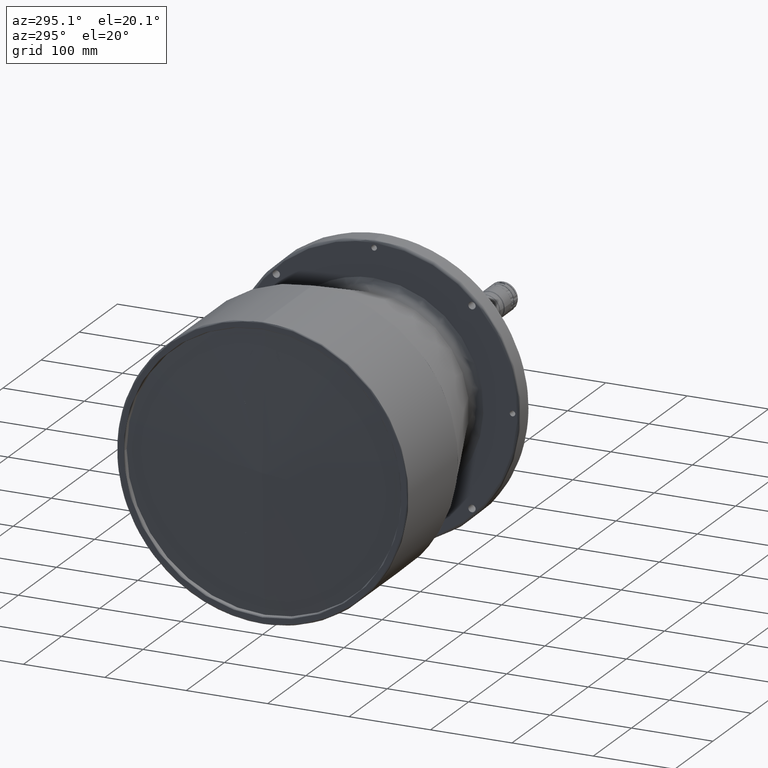
[diagram: clean part render]
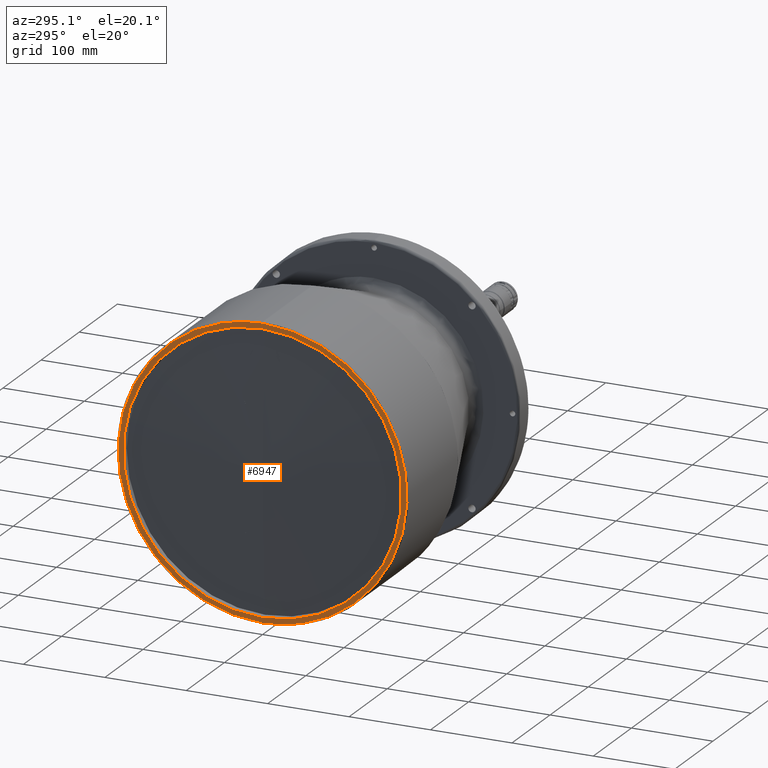
[diagram: same view with one face highlighted and labeled with its STEP entity id]
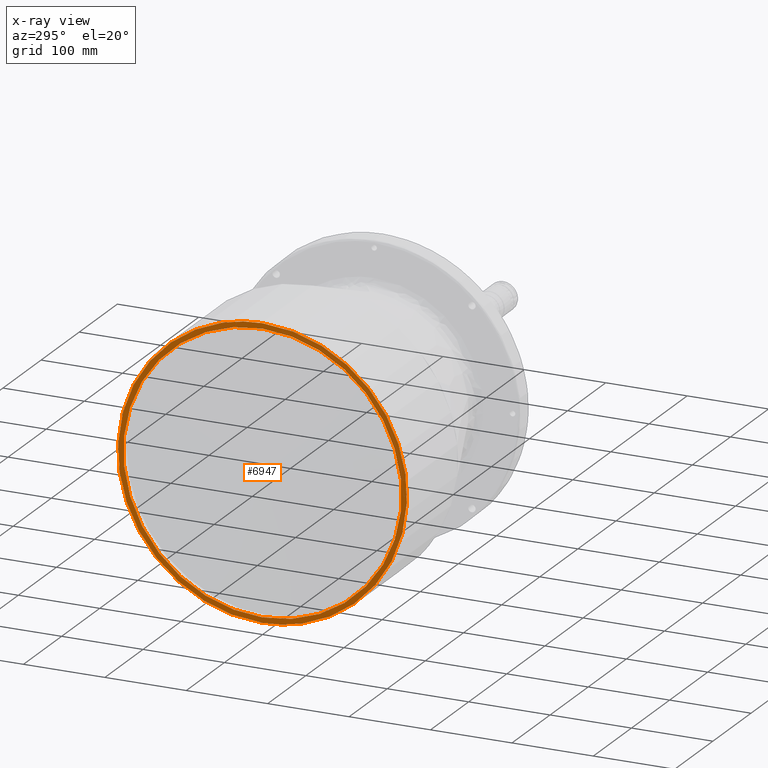
[diagram: x-ray of the same camera — body ghosted, the highlighted face saturated]
A machine part, auxiliary view. The second image highlights one B-rep face of the part: STEP entity #6947.
The next image is the same camera in x-ray: the body ghosted, the highlighted face saturated — about 0% of this face is hidden behind the body in this view.
In plain terms, the highlighted planar face has unit normal (1, -0, 0).
Its self-contained STEP definition (entity closure, byte-faithful):
#25 = VERTEX_POINT ( 'NONE', #4126 ) ;
#275 = ORIENTED_EDGE ( 'NONE', *, *, #3198, .F. ) ;
#1053 = CARTESIAN_POINT ( 'NONE',  ( -3.668491710333236300E-011, 0.0000000000000000000, 177.4999999651986700 ) ) ;
#1296 = VERTEX_POINT ( 'NONE', #6651 ) ;
#1598 = VERTEX_POINT ( 'NONE', #4793 ) ;
#1746 = CARTESIAN_POINT ( 'NONE',  ( -3.668491752681357800E-011, 0.0000000000000000000, -177.4999999651986700 ) ) ;
#2178 =( BOUNDED_CURVE ( )  B_SPLINE_CURVE ( 3, ( #1053, #8988, #3321, #1746 ),
 .UNSPECIFIED., .F., .T. ) 
 B_SPLINE_CURVE_WITH_KNOTS ( ( 4, 4 ),
 ( 0.0000000000000000000, 1.000000000000000000 ),
 .UNSPECIFIED. ) 
 CURVE ( )  GEOMETRIC_REPRESENTATION_ITEM ( )  RATIONAL_B_SPLINE_CURVE ( ( 0.9565783021659444200, 0.3188594340553144200, 0.3188594340553144200, 0.9565783021659444200 ) ) 
 REPRESENTATION_ITEM ( '' )  );
#2301 = DIRECTION ( 'NONE',  ( -1.000000000000000000, 0.0000000000000000000, 0.0000000000000000000 ) ) ;
#2334 = DIRECTION ( 'NONE',  ( -1.000000000000000000, 0.0000000000000000000, 0.0000000000000000000 ) ) ;
#3198 = EDGE_CURVE ( 'NONE', #25, #1598, #6611, .T. ) ;
#3321 = CARTESIAN_POINT ( 'NONE',  ( -6.114152432903948000E-011, -355.0000000013822600, -177.5000000006911600 ) ) ;
#3478 = CARTESIAN_POINT ( 'NONE',  ( -3.668491752681357100E-011, 0.0000000000000000000, -177.4999999651986700 ) ) ;
#3822 = AXIS2_PLACEMENT_3D ( 'NONE', #7053, #2301, #7843 ) ;
#4122 = EDGE_LOOP ( 'NONE', ( #275, #5119 ) ) ;
#4126 = CARTESIAN_POINT ( 'NONE',  ( -3.668491752681357800E-011, 0.0000000000000000000, -177.4999999651986700 ) ) ;
#4500 = EDGE_CURVE ( 'NONE', #1296, #4647, #8528, .T. ) ;
#4573 = EDGE_CURVE ( 'NONE', #1598, #25, #2178, .T. ) ;
#4607 = DIRECTION ( 'NONE',  ( 0.0000000000000000000, 0.0000000000000000000, -1.000000000000000000 ) ) ;
#4647 = VERTEX_POINT ( 'NONE', #8304 ) ;
#4793 = CARTESIAN_POINT ( 'NONE',  ( -3.668491710333236300E-011, 0.0000000000000000000, 177.4999999651986700 ) ) ;
#5119 = ORIENTED_EDGE ( 'NONE', *, *, #4573, .F. ) ;
#5241 = CARTESIAN_POINT ( 'NONE',  ( -3.668491710333236300E-011, 0.0000000000000000000, 177.4999999651986700 ) ) ;
#5448 = CARTESIAN_POINT ( 'NONE',  ( 0.0000000000000000000, 0.0000000000000000000, 0.0000000000000000000 ) ) ;
#5523 = DIRECTION ( 'NONE',  ( 0.0000000000000000000, 0.0000000000000000000, 1.000000000000000000 ) ) ;
#6109 = CIRCLE ( 'NONE', #3822, 171.0000000000000000 ) ;
#6233 = PLANE ( 'NONE',  #6942 ) ;
#6304 = ORIENTED_EDGE ( 'NONE', *, *, #4500, .F. ) ;
#6611 =( BOUNDED_CURVE ( )  B_SPLINE_CURVE ( 3, ( #3478, #10002, #10037, #5241 ),
 .UNSPECIFIED., .F., .T. ) 
 B_SPLINE_CURVE_WITH_KNOTS ( ( 4, 4 ),
 ( 0.0000000000000000000, 1.000000000000000000 ),
 .UNSPECIFIED. ) 
 CURVE ( )  GEOMETRIC_REPRESENTATION_ITEM ( )  RATIONAL_B_SPLINE_CURVE ( ( 0.9565783021659349800, 0.3188594340553113600, 0.3188594340553113600, 0.9565783021659349800 ) ) 
 REPRESENTATION_ITEM ( '' )  );
#6651 = CARTESIAN_POINT ( 'NONE',  ( 0.0000000000000000000, 2.094146026541973900E-014, -171.0000000000000000 ) ) ;
#6942 = AXIS2_PLACEMENT_3D ( 'NONE', #10216, #10252, #4607 ) ;
#6947 = ADVANCED_FACE ( 'NONE', ( #9003, #8749 ), #6233, .F. ) ;
#7053 = CARTESIAN_POINT ( 'NONE',  ( 0.0000000000000000000, 0.0000000000000000000, 0.0000000000000000000 ) ) ;
#7843 = DIRECTION ( 'NONE',  ( 0.0000000000000000000, 0.0000000000000000000, 1.000000000000000000 ) ) ;
#8304 = CARTESIAN_POINT ( 'NONE',  ( 0.0000000000000000000, 0.0000000000000000000, 171.0000000000000000 ) ) ;
#8528 = CIRCLE ( 'NONE', #9268, 171.0000000000000000 ) ;
#8749 = FACE_OUTER_BOUND ( 'NONE', #4122, .T. ) ;
#8988 = CARTESIAN_POINT ( 'NONE',  ( -6.114152432903948000E-011, -355.0000000013822600, 177.5000000006911600 ) ) ;
#9003 = FACE_BOUND ( 'NONE', #9058, .T. ) ;
#9058 = EDGE_LOOP ( 'NONE', ( #10195, #6304 ) ) ;
#9268 = AXIS2_PLACEMENT_3D ( 'NONE', #5448, #2334, #5523 ) ;
#10002 = CARTESIAN_POINT ( 'NONE',  ( -6.114152520491422500E-011, 355.0000000013822600, -177.5000000006911900 ) ) ;
#10037 = CARTESIAN_POINT ( 'NONE',  ( -6.114152520491422500E-011, 355.0000000013822600, 177.5000000006911900 ) ) ;
#10195 = ORIENTED_EDGE ( 'NONE', *, *, #10217, .F. ) ;
#10216 = CARTESIAN_POINT ( 'NONE',  ( 0.0000000000000000000, -179.6300000000000200, 179.6300000000000200 ) ) ;
#10217 = EDGE_CURVE ( 'NONE', #4647, #1296, #6109, .T. ) ;
#10252 = DIRECTION ( 'NONE',  ( 1.000000000000000000, -0.0000000000000000000, 0.0000000000000000000 ) ) ;